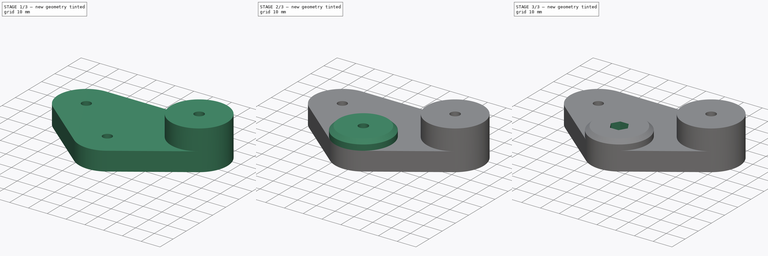
[diagram: build sequence overview — one tinted view per stage of 3, left to right]
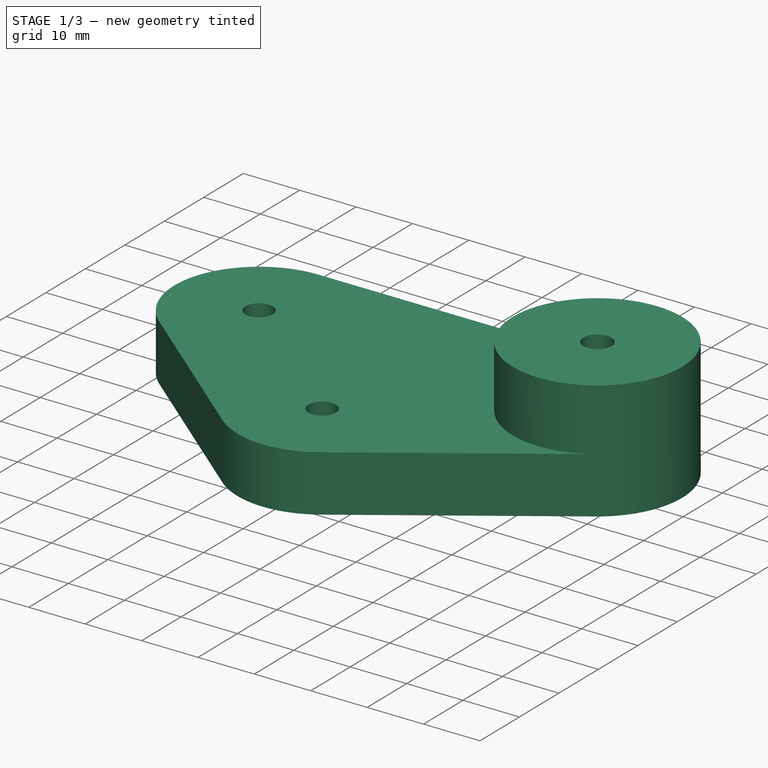
[diagram: stage 1 of 3 — iso view after this stage's code; geometry added in this stage tinted green]
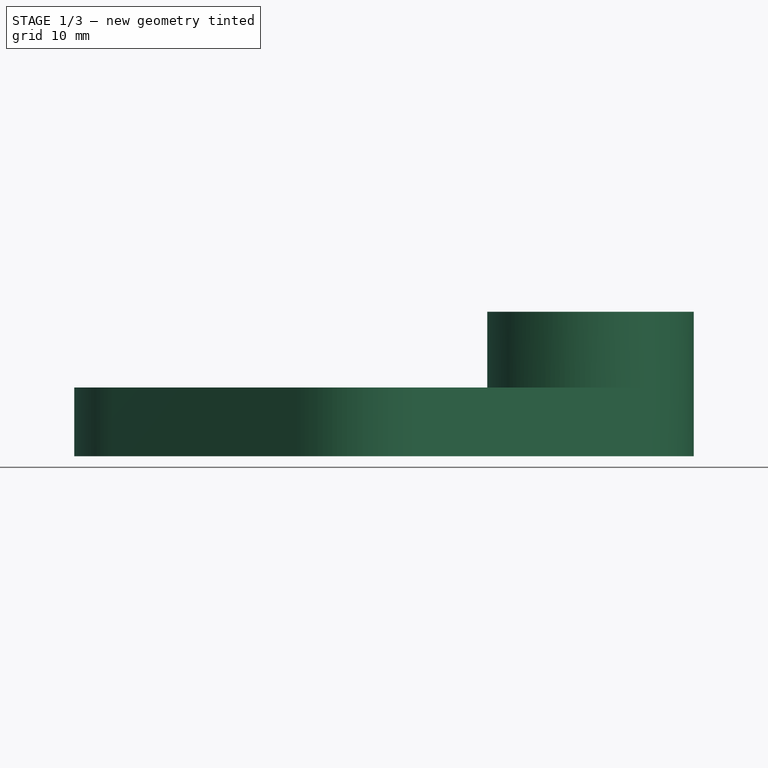
[diagram: stage 1 of 3 — front view after this stage's code; geometry added in this stage tinted green]
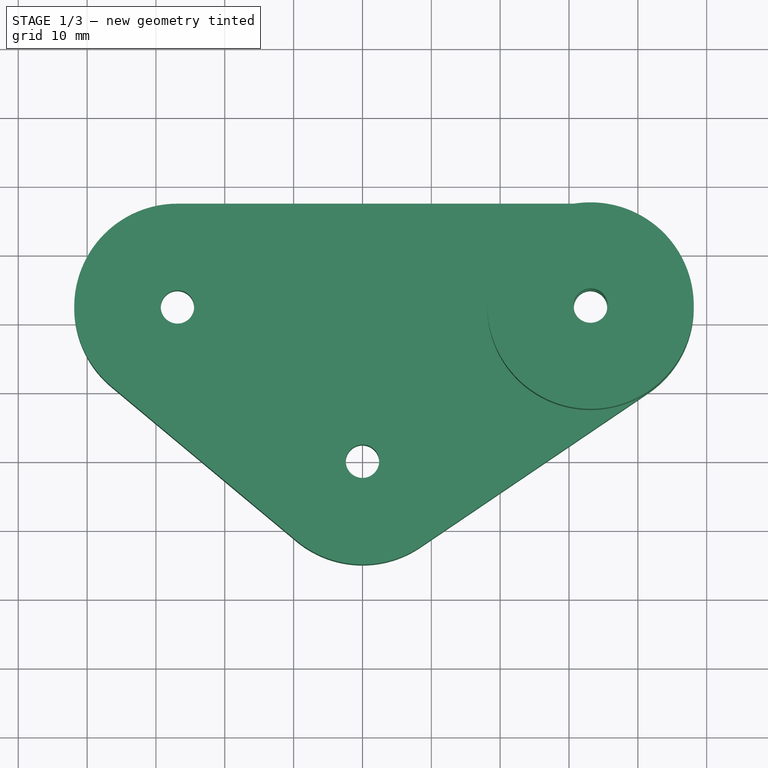
[diagram: stage 1 of 3 — top view after this stage's code; geometry added in this stage tinted green]
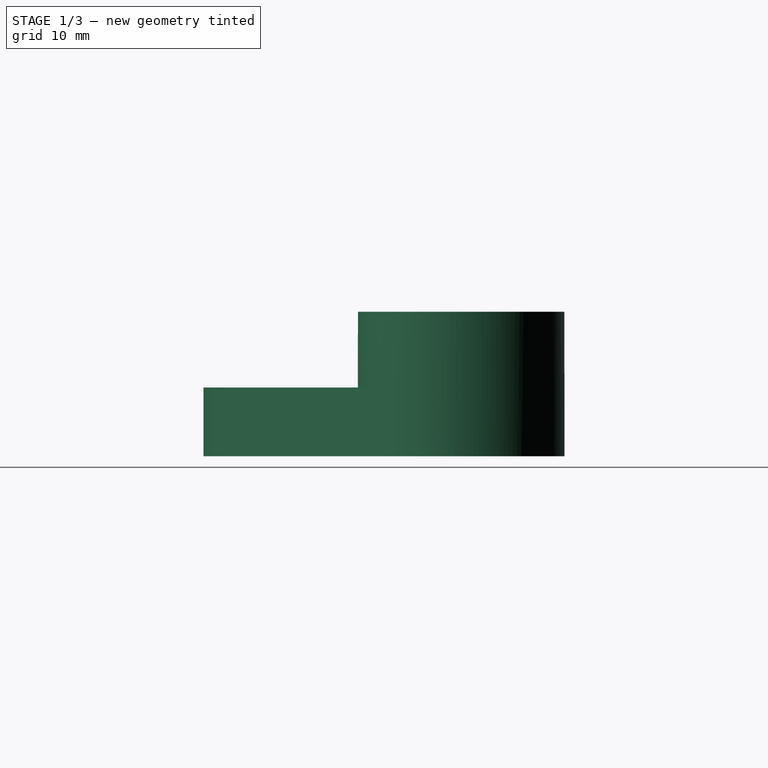
[diagram: stage 1 of 3 — right view after this stage's code; geometry added in this stage tinted green]
FCSTD DOCUMENT  (FreeCAD 0.20R29410 (Git))
Label: #17_Elbow
License: All rights reserved
LicenseURL: http://en.wikipedia.org/wiki/All_rights_reserved
objects: Sketcher::SketchObject×4, PartDesign::Pad×3, PartDesign::Chamfer×1, PartDesign::Pocket×1, PartDesign::Body×1, Part::FeaturePython×1
note: 16 computed .brp shape members not serialized (recipe doc carries the construction recipe); baked Part::Feature solids carry a one-line shape summary decoded from their .brp

FEATURE [Sketcher::SketchObject] Sketch
  FullyConstrained = true
  MapMode = 5
  Support = -> [XY_Plane]
  sketch-geometry (9):
    g0: Circle CenterX=-26.875 CenterY=22.4217 CenterZ=0 NormalX=0 NormalY=0 NormalZ=1 AngleXU=0 Radius=2.425
    g1: Circle CenterX=33.125 CenterY=22.4217 CenterZ=0 NormalX=0 NormalY=0 NormalZ=1 AngleXU=0 Radius=2.425
    g2: Circle CenterX=0 CenterY=0 CenterZ=0 NormalX=0 NormalY=0 NormalZ=1 AngleXU=0 Radius=2.425
    g3: LineSegment StartX=8.40815 StartY=-12.4219 StartZ=0 EndX=41.5332 EndY=9.99986 EndZ=0
    g4: LineSegment StartX=33.125 StartY=37.4217 StartZ=0 EndX=-26.875 EndY=37.4217 EndZ=0
    g5: LineSegment StartX=-36.4843 StartY=10.9039 StartZ=0 EndX=-9.60932 EndY=-11.5179 EndZ=0
    g6: ArcOfCircle CenterX=33.125 CenterY=22.4217 CenterZ=0 NormalX=0 NormalY=0 NormalZ=1 AngleXU=0 Radius=15 StartAngle=5.30743 EndAngle=7.85398
    g7: ArcOfCircle CenterX=-26.875 CenterY=22.4217 CenterZ=0 NormalX=0 NormalY=0 NormalZ=1 AngleXU=0 Radius=15 StartAngle=1.5708 EndAngle=4.01708
    g8: ArcOfCircle CenterX=0 CenterY=0 CenterZ=0 NormalX=0 NormalY=0 NormalZ=1 AngleXU=0 Radius=15 StartAngle=4.01708 EndAngle=5.30743
  constraints (20):
    c: Diameter(g2) = 4.85
    c: Diameter(g1) = 4.85
    c: Diameter(g0) = 4.85
    c: Distance(g0,g1) = 60
    c: Distance(g1,g2) = 40
    c: Distance(g2,g0) = 35
    c: Coincident(g2,g-1)
    c: Tangent(g3,g6) = -1.5708
    c: Tangent(g4,g6) = -1.5708
    c: Tangent(g5,g7) = -1.5708
    c: Tangent(g4,g7) = -1.5708
    c: Tangent(g5,g8) = -1.5708
    c: Tangent(g3,g8) = -1.5708
    c: Diameter(g8) = 30
    c: Diameter(g6) = 30
    c: Diameter(g7) = 30
    c: Coincident(g6,g1)
    c: Coincident(g8,g2)
    c: Coincident(g7,g0)
    c: Horizontal(g4)
FEATURE [PartDesign::Pad] Pad
  Direction = (0,0,1)
  Length = 10
  Length2 = 10
  Profile = -> Sketch
  ReferenceAxis = -> Sketch [N_Axis]
  Type = 0
FEATURE [Sketcher::SketchObject] Sketch001
  ExternalGeometry = -> [Pad]
  FullyConstrained = true
  MapMode = 5
  Placement = pos=(0,0,10) rot=(0,0,1;0rad)
  Support = -> [Pad]
  sketch-geometry (2):
    g0: Circle CenterX=33.125 CenterY=22.4217 CenterZ=0 NormalX=0 NormalY=0 NormalZ=1 AngleXU=0 Radius=15
    g1: Circle CenterX=33.125 CenterY=22.4217 CenterZ=0 NormalX=0 NormalY=0 NormalZ=1 AngleXU=0 Radius=2.5
  constraints (4):
    c: Coincident(g0,g-4)
    c: PointOnObject(g-4,g0)
    c: Coincident(g1,g0)
    c: Diameter(g1) = 5
FEATURE [PartDesign::Pad] Pad001
  BaseFeature = -> Pad
  Direction = (0,0,1)
  Length = 11
  Length2 = 10
  Profile = -> Sketch001
  ReferenceAxis = -> Sketch001 [N_Axis]
  Type = 0
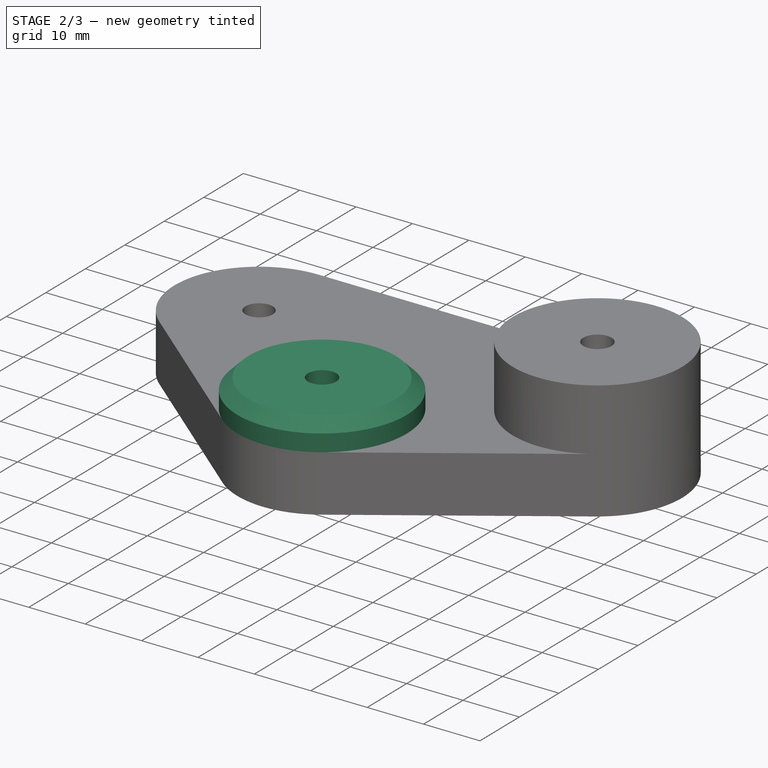
[diagram: stage 2 of 3 — iso view after this stage's code; geometry added in this stage tinted green]
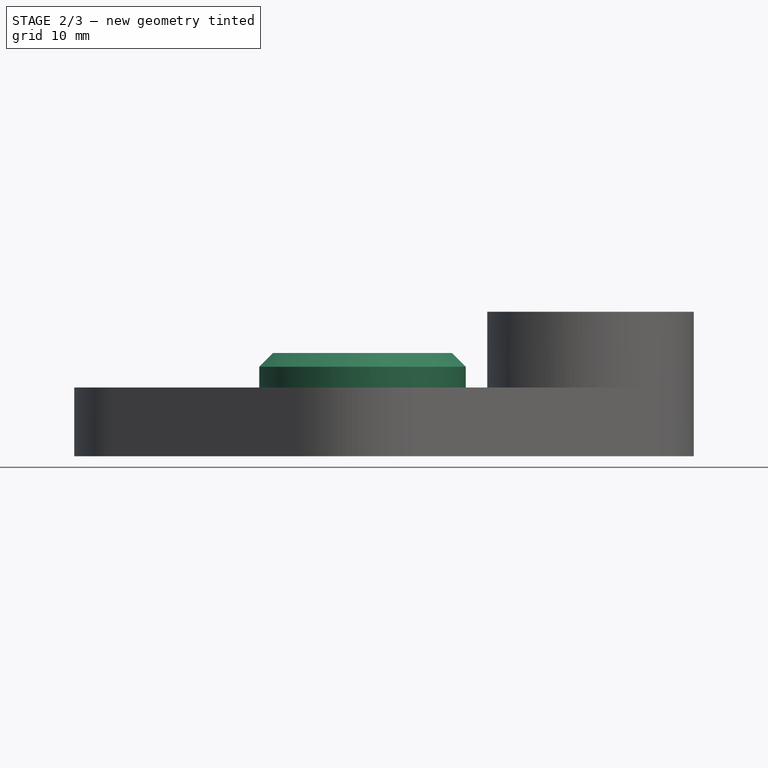
[diagram: stage 2 of 3 — front view after this stage's code; geometry added in this stage tinted green]
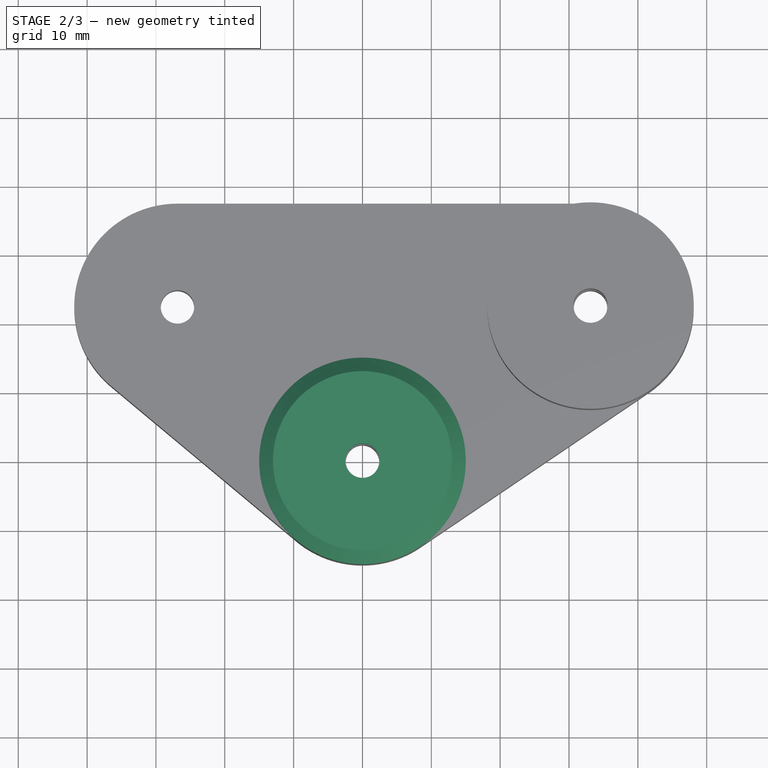
[diagram: stage 2 of 3 — top view after this stage's code; geometry added in this stage tinted green]
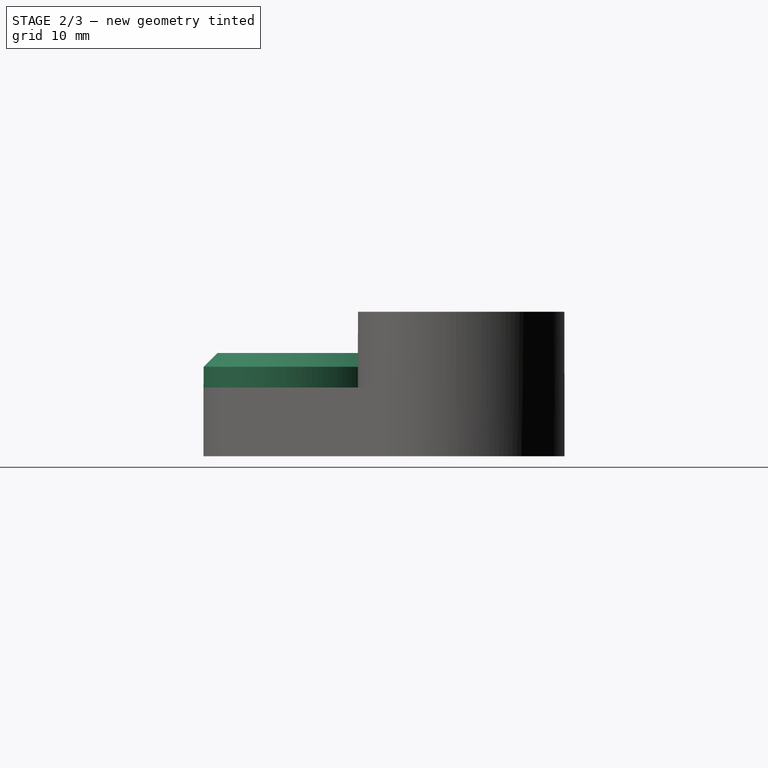
[diagram: stage 2 of 3 — right view after this stage's code; geometry added in this stage tinted green]
FEATURE [Sketcher::SketchObject] Sketch002
  FullyConstrained = true
  MapMode = 5
  Placement = pos=(0,0,10) rot=(0,0,1;0rad)
  Support = -> [Pad001]
  sketch-geometry (2):
    g0: Circle CenterX=0 CenterY=0 CenterZ=0 NormalX=0 NormalY=0 NormalZ=1 AngleXU=0 Radius=15
    g1: Circle CenterX=0 CenterY=0 CenterZ=0 NormalX=0 NormalY=0 NormalZ=1 AngleXU=0 Radius=2.5
  constraints (4):
    c: Coincident(g0,g-1)
    c: Coincident(g1,g0)
    c: Diameter(g0) = 30
    c: Diameter(g1) = 5
FEATURE [PartDesign::Pad] Pad002
  BaseFeature = -> Pad001
  Direction = (0,0,1)
  Length = 5
  Length2 = 10
  Profile = -> Sketch002
  ReferenceAxis = -> Sketch002 [N_Axis]
  Type = 0
FEATURE [PartDesign::Chamfer] Chamfer
  Angle = 45
  Base = -> Pad002 [Edge27]
  BaseFeature = -> Pad002
  ChamferType = 0
  FlipDirection = false
  Size = 2
  Size2 = 1
  SupportTransform = false
  UseAllEdges = false
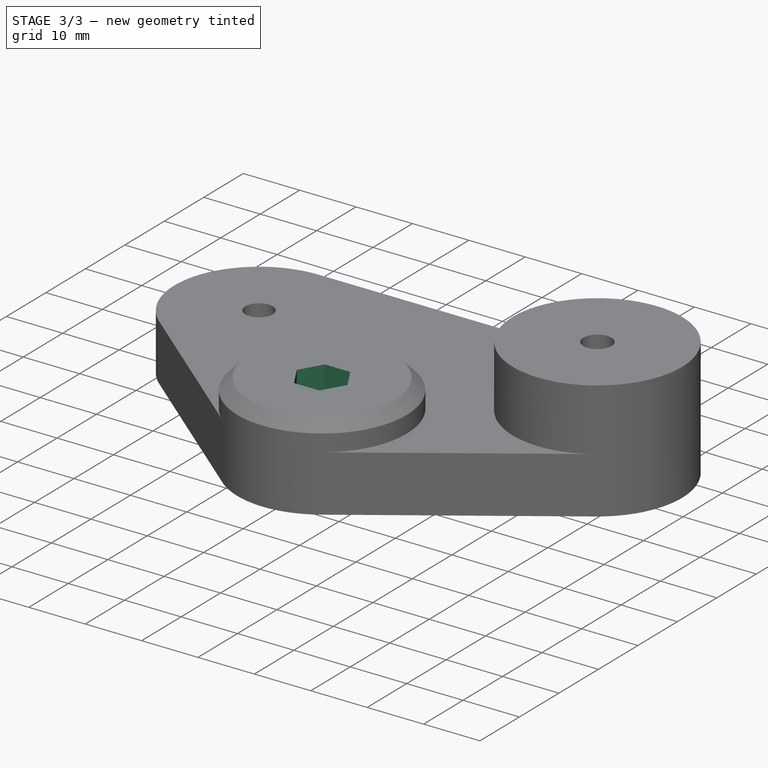
[diagram: stage 3 of 3 — iso view after this stage's code; geometry added in this stage tinted green]
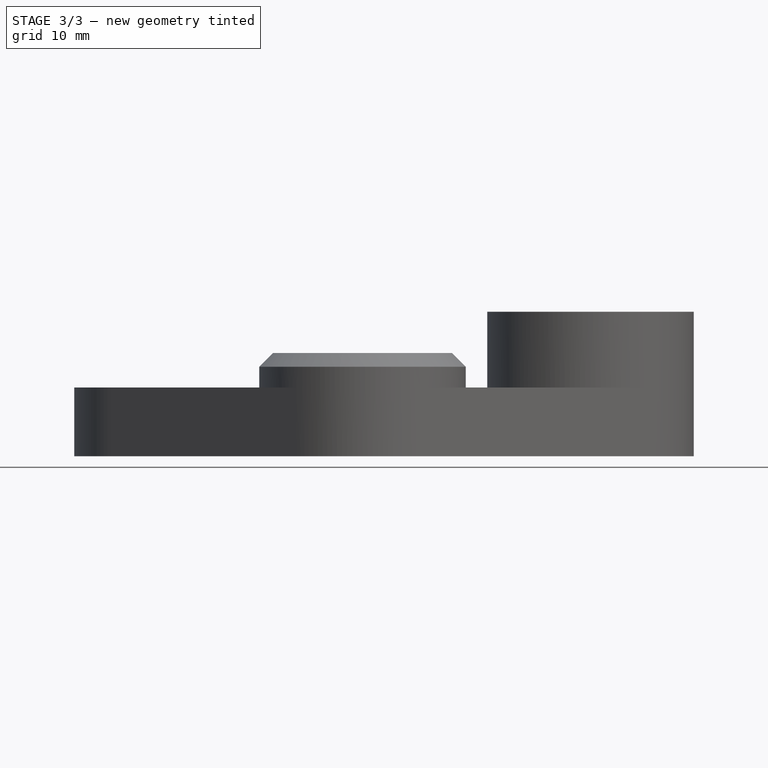
[diagram: stage 3 of 3 — front view after this stage's code; geometry added in this stage tinted green]
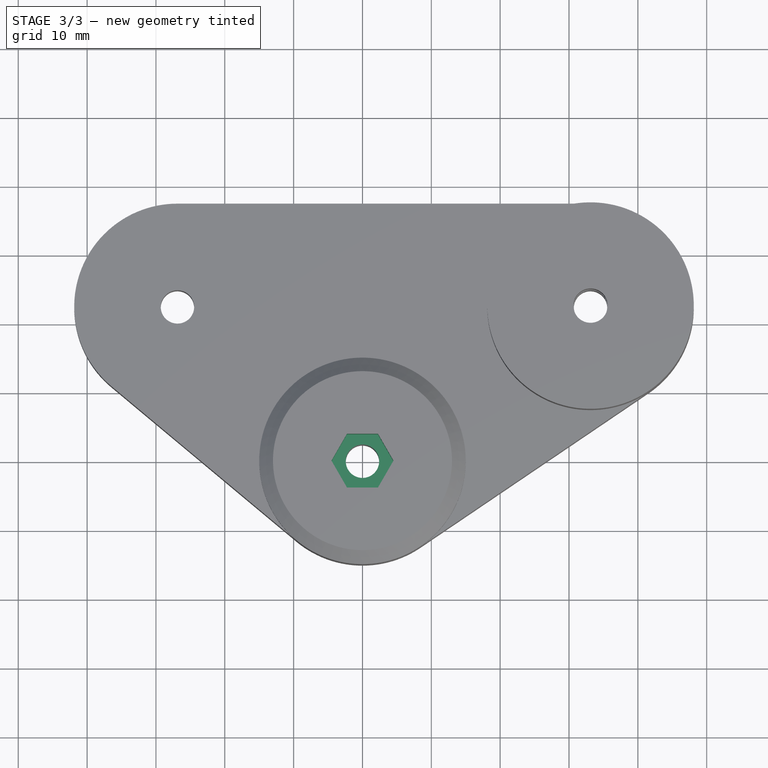
[diagram: stage 3 of 3 — top view after this stage's code; geometry added in this stage tinted green]
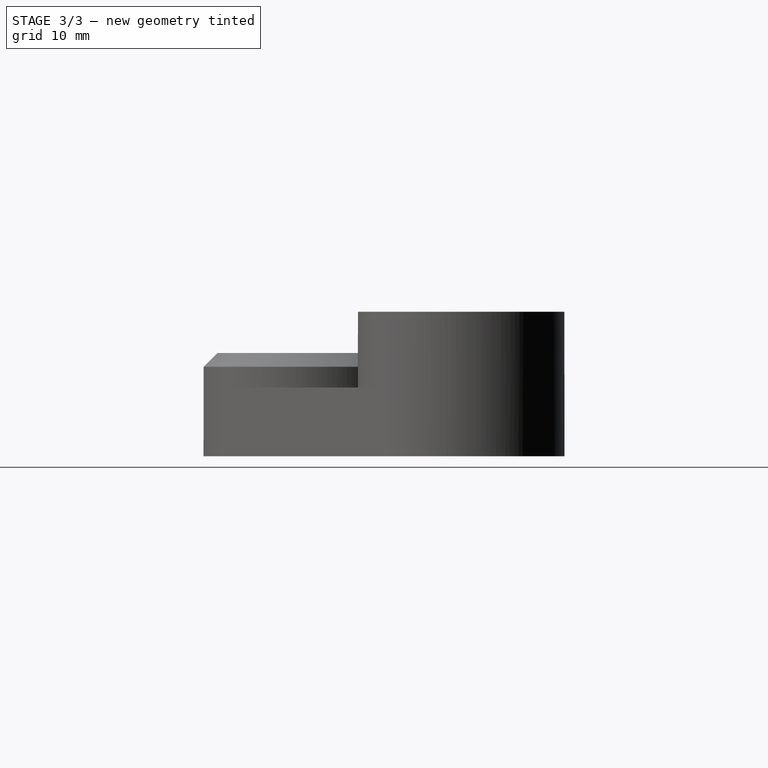
[diagram: stage 3 of 3 — right view after this stage's code; geometry added in this stage tinted green]
FEATURE [Sketcher::SketchObject] Sketch003
  FullyConstrained = true
  MapMode = 5
  Placement = pos=(0,0,15) rot=(0,0,1;0rad)
  Support = -> [Chamfer]
  sketch-geometry (7):
    g0: LineSegment StartX=2.25167 StartY=-3.9 StartZ=0 EndX=4.50333 EndY=-4e-16 EndZ=0
    g1: LineSegment StartX=4.50333 StartY=-4e-16 StartZ=0 EndX=2.25167 EndY=3.9 EndZ=0
    g2: LineSegment StartX=2.25167 StartY=3.9 StartZ=0 EndX=-2.25167 EndY=3.9 EndZ=0
    g3: LineSegment StartX=-2.25167 StartY=3.9 StartZ=0 EndX=-4.50333 EndY=4e-16 EndZ=0
    g4: LineSegment StartX=-4.50333 StartY=4e-16 StartZ=0 EndX=-2.25167 EndY=-3.9 EndZ=0
    g5: LineSegment StartX=-2.25167 StartY=-3.9 StartZ=0 EndX=2.25167 EndY=-3.9 EndZ=0
    g6: Circle CenterX=0 CenterY=0 CenterZ=0 NormalX=0 NormalY=0 NormalZ=1 AngleXU=0 Radius=4.50333
  constraints (16):
    c: Coincident(g0,g1)
    c: Coincident(g1,g2)
    c: Coincident(g2,g3)
    c: Coincident(g3,g4)
    c: Coincident(g4,g5)
    c: Coincident(g5,g0)
    c: Equal(g0, g1-g5) x5
    c: PointOnObject(g0,g6)
    c: PointOnObject(g1,g6)
    c: PointOnObject(g2,g6)
    c: PointOnObject(g3,g6)
    c: PointOnObject(g4,g6)
    c: PointOnObject(g5,g6)
    c: Coincident(g6,g-1)
    c: Distance(g0,g1) = 7.8
    c: Horizontal(g2)
FEATURE [PartDesign::Pocket] Pocket
  BaseFeature = -> Chamfer
  Direction = (0,0,-1)
  Length = 5
  Length2 = 5
  Profile = -> Sketch003
  ReferenceAxis = -> Sketch003 [N_Axis]
  Type = 0
FEATURE [PartDesign::Body] Body
  Group = -> [Sketch,Pad,Sketch001,Pad001,Sketch002,Pad002,Chamfer,Sketch003,Pocket]
  Origin = -> Origin
  Tip = -> Pocket
FEATURE [Part::FeaturePython] refine  label="refine_Pocket"  # WARN: FeaturePython — macro-defined, semantics opaque (R4)
  Base = -> Pocket
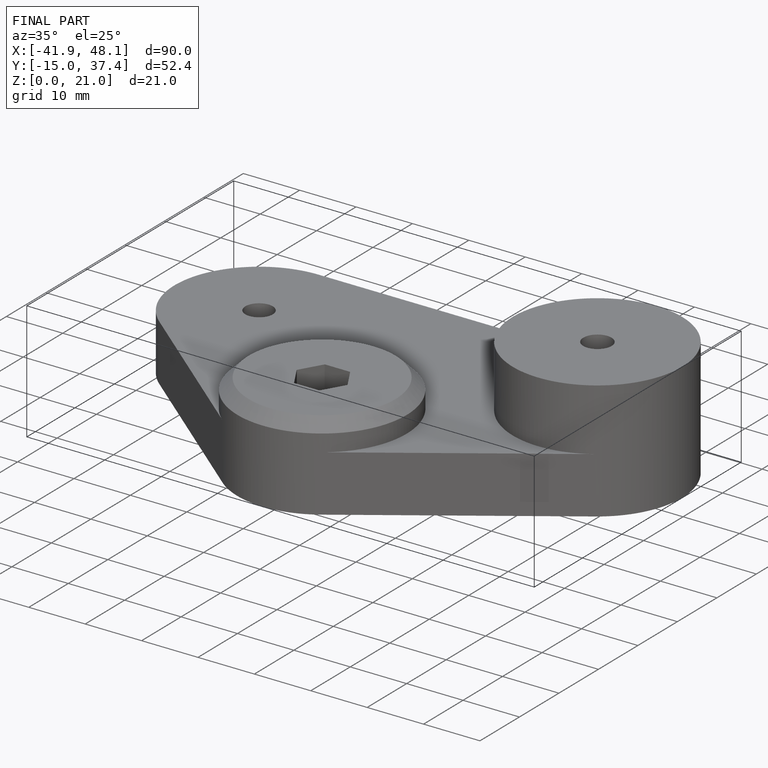
[diagram: finished part — iso view with bounding-box wireframe]
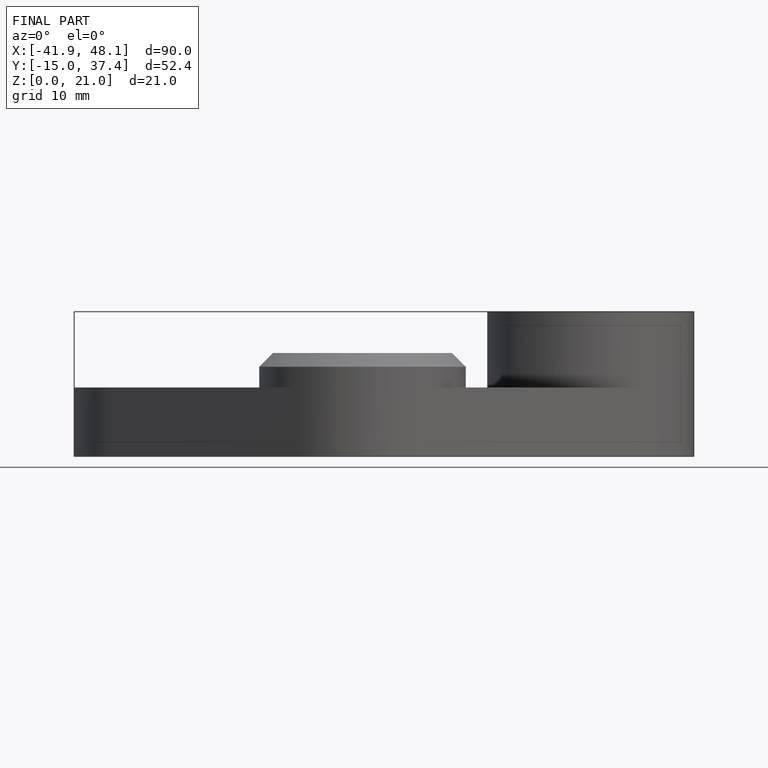
[diagram: finished part — front view with bounding-box wireframe]
